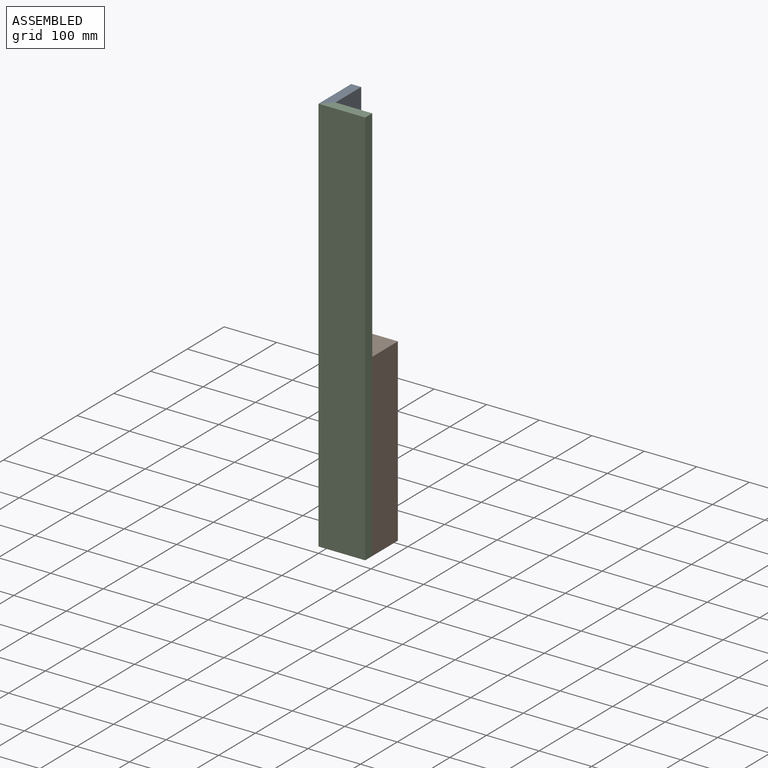
[diagram: assembled view]
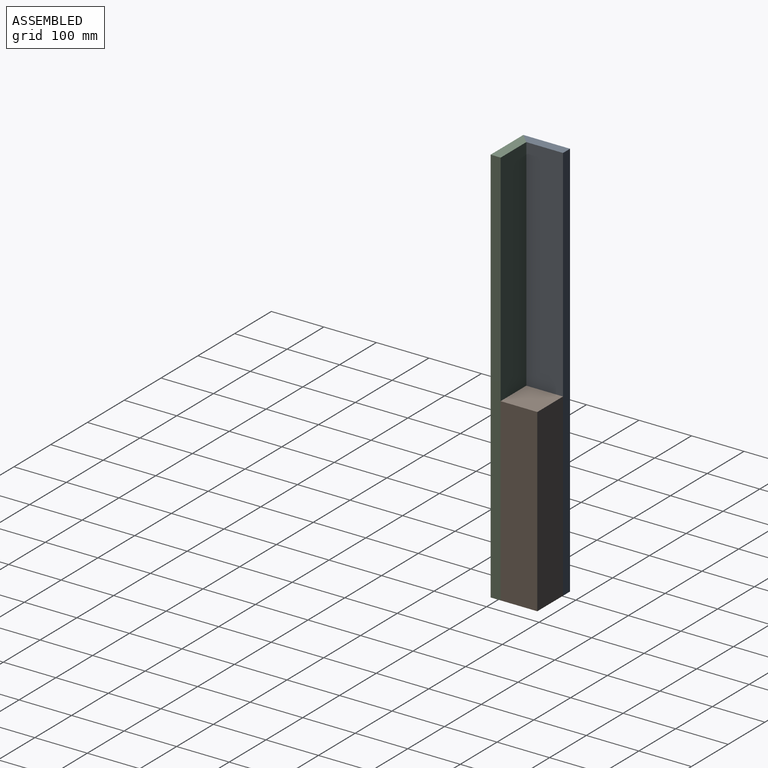
[diagram: assembled view, second angle]
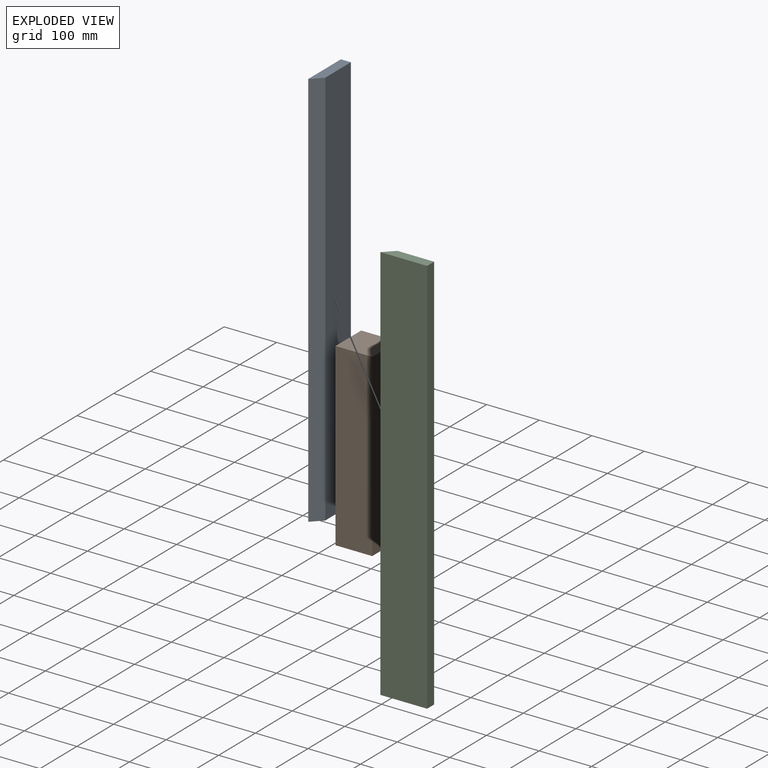
[diagram: exploded view]
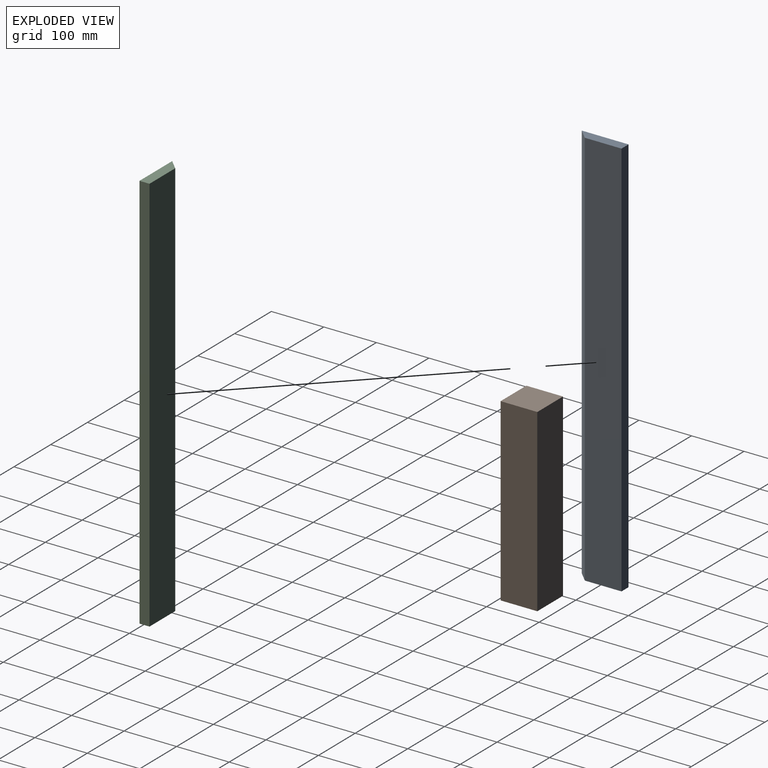
[diagram: exploded view, second angle]
ASSEMBLY  parts=3 mates=2
PART A: 6 faces, bbox 88.9x19.1x762 mm
  f0: plane 762x19.05mm, normal (-1,0,0), area 14516.1mm2, adj f1,f2,f3,f4
  f1: plane 762x88.9mm, normal (0,-1,0), area 67741.8mm2, adj f0,f3,f4,f5
  f2: plane 762x69.85mm, normal (0,1,0), area 53225.7mm2, adj f0,f3,f4,f5
  f3: plane 88.9x19.05mm, normal (0,0,1), area 1512.1mm2, adj f0,f1,f2,f5
  f4: plane 88.9x19.05mm, normal (0,0,-1), area 1512.1mm2, adj f0,f1,f2,f5
  f5: plane 762x19.05mm, normal (0.71,0.71,0), area 20528.9mm2, adj f1,f2,f3,f4
PART B: 6 faces, bbox 69.9x69.9x342.9 mm
  f0: plane 69.85x69.85mm, normal (0,0,1), area 4879mm2, adj f1,f3,f4,f5
  f1: plane 342.9x69.85mm, normal (-1,0,0), area 23951.6mm2, adj f0,f2,f3,f4
  f2: plane 69.85x69.85mm, normal (0,0,-1), area 4879mm2, adj f1,f3,f4,f5
  f3: plane 342.9x69.85mm, normal (0,-1,0), area 23951.6mm2, adj f0,f1,f2,f5
  f4: plane 342.9x69.85mm, normal (0,1,0), area 23951.6mm2, adj f0,f1,f2,f5
  f5: plane 342.9x69.85mm, normal (1,0,0), area 23951.6mm2, adj f0,f2,f3,f4
PART C: same geometry as A
PLACE A rot(axis=(0,0,-1),90deg) t=(6539.65,-6047.24,0)mm
PLACE B at identity
PLACE C rot(axis=(0,1,0),180deg) t=(-6047.24,6539.65,762)mm
MATE fastened A.f5 <-> C.f5  axis (0.71,-0.71,0) through (0,0,762)mm
MATE fastened B.f3 <-> C.f2  axis (0,-1,0) through (88.9,19.05,0)mm
